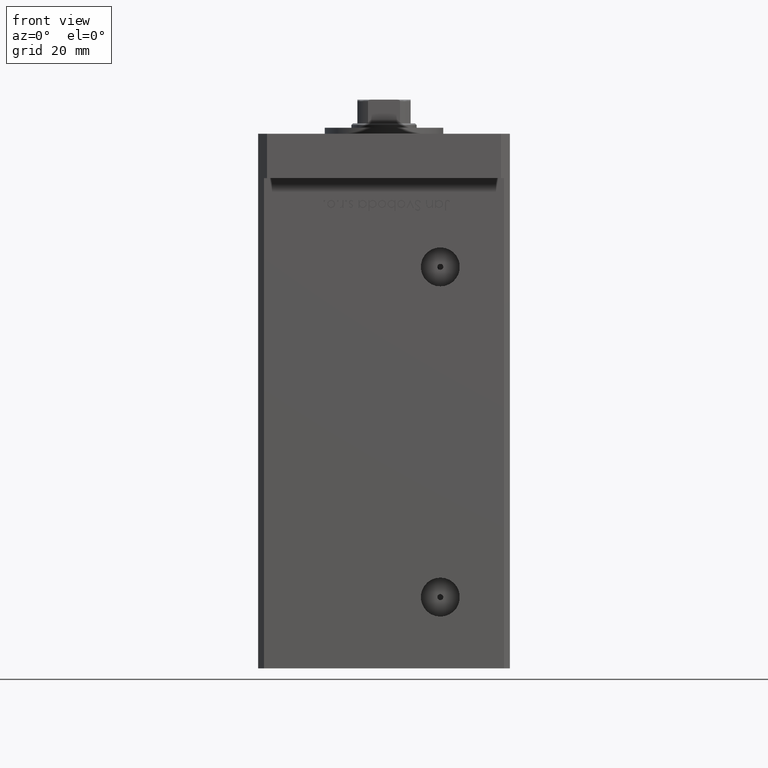
[diagram: clean part render]
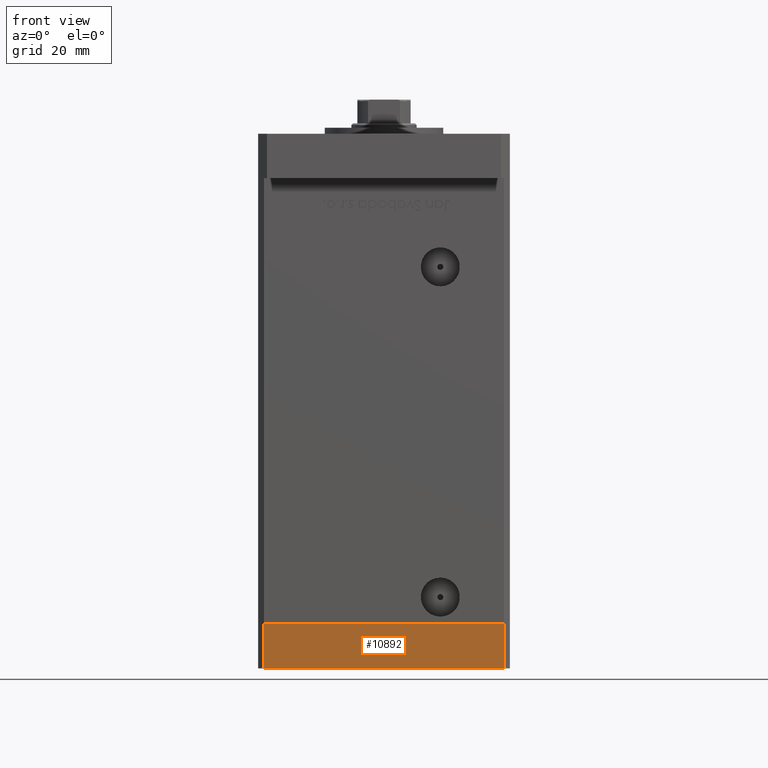
[diagram: same view with one face highlighted and labeled with its STEP entity id]
A machine part, front view. The second image highlights one B-rep face of the part: STEP entity #10892.
In plain terms, the highlighted planar face has unit normal (-0, -1, -0).
Its self-contained STEP definition (entity closure, byte-faithful):
#192 = LINE ( 'NONE', #23749, #19270 ) ;
#719 = EDGE_CURVE ( 'NONE', #36614, #24883, #52997, .T. ) ;
#3617 = DIRECTION ( 'NONE',  ( 0.000000000000000000, 0.000000000000000000, 1.000000000000000000 ) ) ;
#4006 = VECTOR ( 'NONE', #3617, 1000.000000000000000 ) ;
#5645 = FACE_OUTER_BOUND ( 'NONE', #14606, .T. ) ;
#8311 = VERTEX_POINT ( 'NONE', #50889 ) ;
#8719 = CARTESIAN_POINT ( 'NONE',  ( 40.50000000000000000, -37.50000000000000711, -15.00000000000000000 ) ) ;
#9329 = CARTESIAN_POINT ( 'NONE',  ( -40.49999999999999289, -37.50000000000002132, -15.00000000000000000 ) ) ;
#10262 = CARTESIAN_POINT ( 'NONE',  ( -40.49999999999999289, -37.50000000000002132, -15.00000000000000000 ) ) ;
#10892 = ADVANCED_FACE ( 'NONE', ( #5645 ), #34407, .T. ) ;
#12088 = CARTESIAN_POINT ( 'NONE',  ( 40.50000000000000000, -37.50000000000000711, 0.000000000000000000 ) ) ;
#12174 = CARTESIAN_POINT ( 'NONE',  ( -40.49999999999999289, -37.50000000000002132, -15.00000000000000000 ) ) ;
#14606 = EDGE_LOOP ( 'NONE', ( #43504, #25524, #23355, #24804 ) ) ;
#18415 = DIRECTION ( 'NONE',  ( 1.000000000000000000, 1.713307136767217096E-16, 0.000000000000000000 ) ) ;
#18671 = LINE ( 'NONE', #10262, #21512 ) ;
#19270 = VECTOR ( 'NONE', #52818, 1000.000000000000000 ) ;
#19453 = EDGE_CURVE ( 'NONE', #8311, #24883, #192, .T. ) ;
#20326 = VERTEX_POINT ( 'NONE', #12174 ) ;
#21512 = VECTOR ( 'NONE', #18415, 1000.000000000000000 ) ;
#23333 = AXIS2_PLACEMENT_3D ( 'NONE', #26507, #34137, #50959 ) ;
#23355 = ORIENTED_EDGE ( 'NONE', *, *, #43999, .T. ) ;
#23749 = CARTESIAN_POINT ( 'NONE',  ( -40.49999999999999289, -37.50000000000002132, 0.000000000000000000 ) ) ;
#24804 = ORIENTED_EDGE ( 'NONE', *, *, #719, .T. ) ;
#24883 = VERTEX_POINT ( 'NONE', #12088 ) ;
#25524 = ORIENTED_EDGE ( 'NONE', *, *, #43268, .F. ) ;
#26507 = CARTESIAN_POINT ( 'NONE',  ( -40.49999999999999289, -37.50000000000002132, -15.00000000000000000 ) ) ;
#26703 = VECTOR ( 'NONE', #42460, 1000.000000000000000 ) ;
#32354 = CARTESIAN_POINT ( 'NONE',  ( 40.50000000000000000, -37.50000000000000711, -15.00000000000000000 ) ) ;
#34137 = DIRECTION ( 'NONE',  ( 1.713307136767217096E-16, -1.000000000000000000, 0.000000000000000000 ) ) ;
#34298 = LINE ( 'NONE', #9329, #26703 ) ;
#34407 = PLANE ( 'NONE',  #23333 ) ;
#36614 = VERTEX_POINT ( 'NONE', #8719 ) ;
#42460 = DIRECTION ( 'NONE',  ( 0.000000000000000000, 0.000000000000000000, 1.000000000000000000 ) ) ;
#43268 = EDGE_CURVE ( 'NONE', #20326, #8311, #34298, .T. ) ;
#43504 = ORIENTED_EDGE ( 'NONE', *, *, #19453, .F. ) ;
#43999 = EDGE_CURVE ( 'NONE', #20326, #36614, #18671, .T. ) ;
#50889 = CARTESIAN_POINT ( 'NONE',  ( -40.49999999999999289, -37.50000000000002132, 0.000000000000000000 ) ) ;
#50959 = DIRECTION ( 'NONE',  ( 1.000000000000000000, 1.713307136767217096E-16, 0.000000000000000000 ) ) ;
#52818 = DIRECTION ( 'NONE',  ( 1.000000000000000000, 1.713307136767217096E-16, 0.000000000000000000 ) ) ;
#52997 = LINE ( 'NONE', #32354, #4006 ) ;